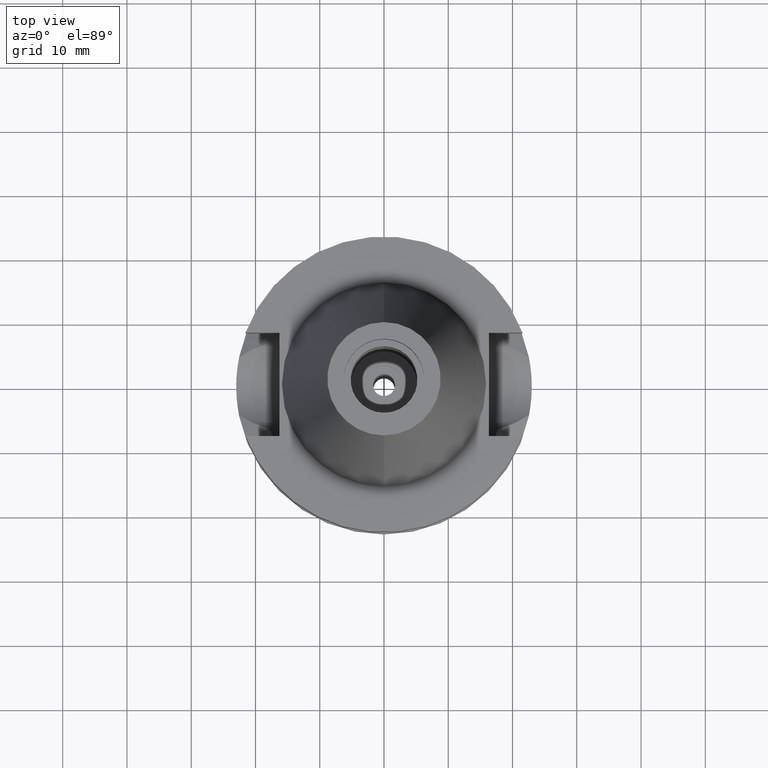
[diagram: clean part render]
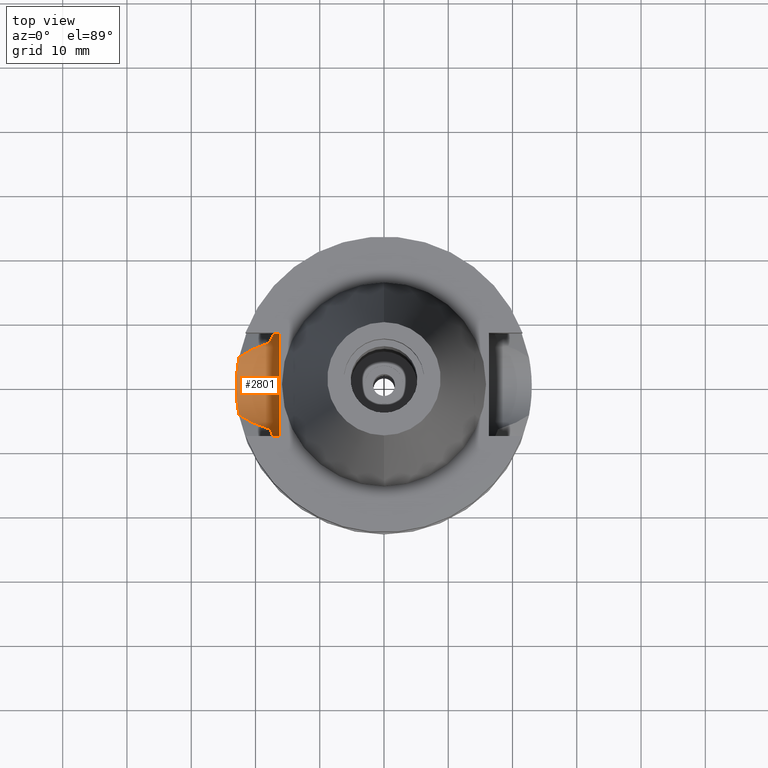
[diagram: same view with one face highlighted and labeled with its STEP entity id]
A machine part, top view. The second image highlights one B-rep face of the part: STEP entity #2801.
In plain terms, the highlighted cylindrical surface (partial cylindrical patch) has radius 8.05 mm, axis along (-1, 0, 0).
Its self-contained STEP definition (entity closure, byte-faithful):
#3 = ORIENTED_EDGE ( 'NONE', *, *, #1139, .T. ) ;
#11 = CYLINDRICAL_SURFACE ( 'NONE', #1826, 8.050000000000000711 ) ;
#18 = CARTESIAN_POINT ( 'NONE',  ( -18.57624872220198853, 6.503173323986779941, -15.71372017776992003 ) ) ;
#20 = CARTESIAN_POINT ( 'NONE',  ( -19.89857123033766584, 5.971878619631888263, -16.34832721881102202 ) ) ;
#28 = DIRECTION ( 'NONE',  ( 0.0000000000000000000, 0.0000000000000000000, -1.000000000000000000 ) ) ;
#46 = CARTESIAN_POINT ( 'NONE',  ( -17.23531135310999929, 7.996501749182001184, -11.87660739352000050 ) ) ;
#61 = CARTESIAN_POINT ( 'NONE',  ( -20.55893880403271368, 5.668033771167638513, -16.66628404551198628 ) ) ;
#66 = CARTESIAN_POINT ( 'NONE',  ( -22.83515831991506317, 2.749359237397393407, -18.51653920086928196 ) ) ;
#70 = CARTESIAN_POINT ( 'NONE',  ( -17.23531622871000124, -7.996491146968002006, -11.87660607765999998 ) ) ;
#92 = VERTEX_POINT ( 'NONE', #2910 ) ;
#118 = CARTESIAN_POINT ( 'NONE',  ( -21.04639564912879734, 5.420967606633268154, -16.90141497568515661 ) ) ;
#140 = CARTESIAN_POINT ( 'NONE',  ( -22.95202015499865666, 1.533614323660443812, -18.86244436172527017 ) ) ;
#166 = CARTESIAN_POINT ( 'NONE',  ( -18.96738966519999892, -8.049994318072998922, -10.95000099924999937 ) ) ;
#170 = CARTESIAN_POINT ( 'NONE',  ( -22.88938518966574520, -2.254104430437781303, -18.67801065640410130 ) ) ;
#209 = CARTESIAN_POINT ( 'NONE',  ( -17.25079791568849430, 7.963113799905539913, -12.16466472332397686 ) ) ;
#236 = CARTESIAN_POINT ( 'NONE',  ( -19.27477000084288505, 6.229367662011818574, -16.04877386440565346 ) ) ;
#239 = CARTESIAN_POINT ( 'NONE',  ( -22.27790437987590266, 4.685437129885973384, -17.49706748129260347 ) ) ;
#245 = CARTESIAN_POINT ( 'NONE',  ( -18.96736186674000280, 8.050001277723000115, -10.94999977542999936 ) ) ;
#254 = DIRECTION ( 'NONE',  ( 0.0000000000000000000, 0.0000000000000000000, -1.000000000000000000 ) ) ;
#283 = DIRECTION ( 'NONE',  ( -1.000000000000000000, 0.0000000000000000000, 0.0000000000000000000 ) ) ;
#296 = CARTESIAN_POINT ( 'NONE',  ( -20.60178801668841331, -5.647149702341094368, -16.68693861988806049 ) ) ;
#300 = B_SPLINE_CURVE_WITH_KNOTS ( 'NONE', 3,
 ( #2827, #734, #723, #1648 ),
 .UNSPECIFIED., .F., .F.,
 ( 4, 4 ),
 ( 0.0000000000000000000, 1.000000000000000000 ),
 .UNSPECIFIED. ) ;
#307 = CARTESIAN_POINT ( 'NONE',  ( -22.87891341430960779, 2.358121708019464524, -18.64689980299749905 ) ) ;
#346 = CARTESIAN_POINT ( 'NONE',  ( -19.50287498333305791, 6.138361269546106058, -16.15822634878232833 ) ) ;
#351 = CARTESIAN_POINT ( 'NONE',  ( -17.47452430607552287, -7.459789436935926332, -13.97646046015654520 ) ) ;
#382 = CARTESIAN_POINT ( 'NONE',  ( -22.92437741125128881, -1.866172412060304930, -18.78133692844377833 ) ) ;
#394 = CARTESIAN_POINT ( 'NONE',  ( -17.72598984667062538, -8.027133614841753584, -11.61218199030514597 ) ) ;
#398 = CARTESIAN_POINT ( 'NONE',  ( -22.81065323835687053, -3.022382754286001116, -18.44420457557493265 ) ) ;
#405 = CARTESIAN_POINT ( 'NONE',  ( -18.96738966519999892, -8.049994318072998922, -10.95000099924999937 ) ) ;
#407 = VERTEX_POINT ( 'NONE', #405 ) ;
#412 = CARTESIAN_POINT ( 'NONE',  ( -20.64409785173076273, 5.626374423242209488, -16.70733471157011252 ) ) ;
#426 = VECTOR ( 'NONE', #748, 1000.000000000000114 ) ;
#429 = CARTESIAN_POINT ( 'NONE',  ( -20.56714500445705696, 5.664042630044271220, -16.67023940852507735 ) ) ;
#457 = CARTESIAN_POINT ( 'NONE',  ( -20.58003457328145203, 5.657760775534448783, -16.67645236852075996 ) ) ;
#474 = CARTESIAN_POINT ( 'NONE',  ( -20.22047913402555253, 5.829432203429742110, -16.50317925048704382 ) ) ;
#494 = CARTESIAN_POINT ( 'NONE',  ( -17.23531135310999929, 7.996501749182001184, -11.87660739352000050 ) ) ;
#503 = EDGE_LOOP ( 'NONE', ( #1282, #3016, #976, #606, #2809, #1585, #1318, #2164, #3, #1548 ) ) ;
#519 = CARTESIAN_POINT ( 'NONE',  ( -22.55786346208000026, 4.488072640470000430, -17.63279163029000074 ) ) ;
#523 = CARTESIAN_POINT ( 'NONE',  ( -18.80553894996279496, -6.435339280190603084, -15.82262917054192641 ) ) ;
#546 = CARTESIAN_POINT ( 'NONE',  ( -17.42161707611933252, -7.582199713747250769, -13.65422730745306623 ) ) ;
#606 = ORIENTED_EDGE ( 'NONE', *, *, #927, .T. ) ;
#625 = CARTESIAN_POINT ( 'NONE',  ( -22.88197413610445352, -2.328135299072308317, -18.65602165958649294 ) ) ;
#702 = CARTESIAN_POINT ( 'NONE',  ( -17.61321462445758357, 7.137149445239026058, -14.73809007965728135 ) ) ;
#716 = VERTEX_POINT ( 'NONE', #46 ) ;
#718 = CARTESIAN_POINT ( 'NONE',  ( -17.33752402834236506, 7.772947272226049087, -13.04947954205947447 ) ) ;
#723 = CARTESIAN_POINT ( 'NONE',  ( -17.72682660682189848, 8.027186146991873272, -11.61172866957230276 ) ) ;
#734 = CARTESIAN_POINT ( 'NONE',  ( -18.30417677803190202, 8.050000009832551484, -11.30245973780451862 ) ) ;
#748 = DIRECTION ( 'NONE',  ( -0.9999999999976610932, 2.130145251746920513E-06, -3.746156564522856503E-07 ) ) ;
#753 = CARTESIAN_POINT ( 'NONE',  ( -22.85088369058747659, 2.617365685144839471, -18.56358241620148775 ) ) ;
#758 = CARTESIAN_POINT ( 'NONE',  ( -21.45936375468500401, -5.194679876426218534, -17.10094082781561298 ) ) ;
#760 = EDGE_CURVE ( 'NONE', #2091, #1796, #2519, .T. ) ;
#770 = CARTESIAN_POINT ( 'NONE',  ( -22.63177853288513575, 4.116562148414592670, -17.88229306132062035 ) ) ;
#773 = CARTESIAN_POINT ( 'NONE',  ( -22.55786346208000026, -4.488072640470000430, -17.63279163029000074 ) ) ;
#779 = CARTESIAN_POINT ( 'NONE',  ( -17.51071098875464926, -7.374879092312460749, -14.18037827738803536 ) ) ;
#835 = VERTEX_POINT ( 'NONE', #70 ) ;
#927 = EDGE_CURVE ( 'NONE', #92, #1724, #945, .T. ) ;
#945 = CIRCLE ( 'NONE', #1891, 8.050000000000000711 ) ;
#966 = DIRECTION ( 'NONE',  ( 1.000000000000000000, 0.0000000000000000000, 0.0000000000000000000 ) ) ;
#968 = B_SPLINE_CURVE_WITH_KNOTS ( 'NONE', 3,
 ( #519, #770, #1449, #1220, #2163, #66, #753, #2637, #1681, #307, #1235, #2176, #140, #1293, #1063, #1790, #2756, #3019, #2496, #382, #2258, #2024, #170, #2963, #625, #398, #1329, #2272 ),
 .UNSPECIFIED., .F., .F.,
 ( 4, 2, 2, 1, 1, 2, 2, 2, 2, 2, 2, 1, 1, 2, 2, 4 ),
 ( 0.0000000000000000000, 0.1250000000000039413, 0.1875000000000059119, 0.2187500000000066613, 0.2343750000000069944, 0.2421875000000071609, 0.2500000000000073275, 0.3750000000000054956, 0.5000000000000036637, 0.6250000000000017764, 0.6875000000000008882, 0.7187500000000004441, 0.7343750000000004441, 0.7421875000000004441, 0.7500000000000004441, 1.000000000000000000 ),
 .UNSPECIFIED. ) ;
#976 = ORIENTED_EDGE ( 'NONE', *, *, #2361, .F. ) ;
#1032 = CARTESIAN_POINT ( 'NONE',  ( -17.32790249028235507, -7.797426465314135413, -13.04841612853738830 ) ) ;
#1036 = CARTESIAN_POINT ( 'NONE',  ( -19.27145901608241019, 6.230667353173573453, -16.04718566850732486 ) ) ;
#1044 = CARTESIAN_POINT ( 'NONE',  ( -17.68526844438783030, -6.947831520201633637, -15.03065165903256428 ) ) ;
#1063 = CARTESIAN_POINT ( 'NONE',  ( -23.00038478320950119, 0.3584610413676726504, -19.00113007008505761 ) ) ;
#1111 = VERTEX_POINT ( 'NONE', #1921 ) ;
#1113 = CARTESIAN_POINT ( 'NONE',  ( -19.32658731103081351, 6.208955161327025074, -16.07363106783727957 ) ) ;
#1139 = EDGE_CURVE ( 'NONE', #1111, #2091, #968, .T. ) ;
#1152 = B_SPLINE_CURVE_WITH_KNOTS ( 'NONE', 3,
 ( #2270, #394, #2961, #166 ),
 .UNSPECIFIED., .F., .F.,
 ( 4, 4 ),
 ( 0.0000000000000000000, 1.000000000000000000 ),
 .UNSPECIFIED. ) ;
#1177 = CARTESIAN_POINT ( 'NONE',  ( -22.27077028202704057, -4.695363211319531160, -17.49357808135257741 ) ) ;
#1198 = CARTESIAN_POINT ( 'NONE',  ( -19.78328776892033147, 6.021651293259151494, -16.29290655536503252 ) ) ;
#1216 = LINE ( 'NONE', #2762, #426 ) ;
#1220 = CARTESIAN_POINT ( 'NONE',  ( -22.77720528803699196, 3.196010378945236319, -18.34110453313107314 ) ) ;
#1235 = CARTESIAN_POINT ( 'NONE',  ( -22.88096829833158097, 2.338147452199169862, -18.65299993512483923 ) ) ;
#1257 = CARTESIAN_POINT ( 'NONE',  ( -21.31889375515417484, 5.274114906254664170, -17.03301015039365396 ) ) ;
#1266 = CARTESIAN_POINT ( 'NONE',  ( -17.42270178794457181, -7.579707364088493549, -13.66120112249793728 ) ) ;
#1278 = CARTESIAN_POINT ( 'NONE',  ( -19.38622727024744208, 6.185272681567900221, -16.10224548289518509 ) ) ;
#1281 = CARTESIAN_POINT ( 'NONE',  ( -17.42909948835617939, -7.564997785236814209, -13.70206085427003018 ) ) ;
#1282 = ORIENTED_EDGE ( 'NONE', *, *, #2401, .T. ) ;
#1293 = CARTESIAN_POINT ( 'NONE',  ( -22.99087512689730417, 0.7510485227484829940, -18.97462926169251318 ) ) ;
#1318 = ORIENTED_EDGE ( 'NONE', *, *, #1655, .T. ) ;
#1319 = EDGE_CURVE ( 'NONE', #1111, #1562, #1418, .T. ) ;
#1329 = CARTESIAN_POINT ( 'NONE',  ( -22.70333676012394619, -3.756897577674454869, -18.12383893151783099 ) ) ;
#1354 = CARTESIAN_POINT ( 'NONE',  ( -17.75736593456000278, 6.758398853743999624, -15.32339055352999857 ) ) ;
#1357 = CARTESIAN_POINT ( 'NONE',  ( -21.66393474030303778, 5.073665578413932842, -17.19984901370881047 ) ) ;
#1384 = CARTESIAN_POINT ( 'NONE',  ( -16.29999999999999716, 8.050000000000000711, -10.94999999999999929 ) ) ;
#1418 = B_SPLINE_CURVE_WITH_KNOTS ( 'NONE', 3,
 ( #2571, #2341, #239, #2071, #1610, #2553, #1630, #1805, #1357, #2300, #1257, #118, #2249, #2254, #412, #1578, #457, #429, #61, #2106, #474, #20, #1198, #2561, #346, #1278, #1113, #2758, #2166, #236, #1036, #18, #2409, #2427 ),
 .UNSPECIFIED., .F., .F.,
 ( 4, 2, 1, 1, 2, 2, 2, 1, 1, 1, 1, 2, 2, 2, 2, 1, 1, 1, 1, 2, 2, 4 ),
 ( 0.0000000000000000000, 0.1249999999999938383, 0.1874999999999904798, 0.2187499999999875655, 0.2343749999999847622, 0.2499999999999819589, 0.3749999999999584777, 0.4374999999999467648, 0.4687499999999409916, 0.4843749999999381051, 0.4921874999999356071, 0.4960937499999342193, 0.4999999999999328870, 0.6249999999999131806, 0.6874999999999031886, 0.7187499999998981925, 0.7343749999998956390, 0.7421874999998948619, 0.7460937499998951949, 0.7480468749998953060, 0.7499999999998954170, 1.000000000000000000 ),
 .UNSPECIFIED. ) ;
#1438 = CARTESIAN_POINT ( 'NONE',  ( -19.73784485515391296, -6.066847889812133410, -16.27052316889783512 ) ) ;
#1449 = CARTESIAN_POINT ( 'NONE',  ( -22.69585337322503094, 3.743386334315921271, -18.08801043709256362 ) ) ;
#1487 = CARTESIAN_POINT ( 'NONE',  ( -20.71958841299730381, -5.589003259959053338, -16.74373712526119462 ) ) ;
#1523 = EDGE_CURVE ( 'NONE', #835, #407, #1152, .T. ) ;
#1524 = CARTESIAN_POINT ( 'NONE',  ( -17.45717623285886688, -7.500195103410642439, -13.87548234625965371 ) ) ;
#1548 = ORIENTED_EDGE ( 'NONE', *, *, #760, .T. ) ;
#1562 = VERTEX_POINT ( 'NONE', #1354 ) ;
#1578 = CARTESIAN_POINT ( 'NONE',  ( -20.59933170863250851, 5.648340130171034090, -16.68575415139210705 ) ) ;
#1585 = ORIENTED_EDGE ( 'NONE', *, *, #2873, .T. ) ;
#1595 = CARTESIAN_POINT ( 'NONE',  ( -17.40049020041024264, 7.630605231883743400, -13.51497153026903675 ) ) ;
#1610 = CARTESIAN_POINT ( 'NONE',  ( -21.93230817305593305, 4.910039656900369920, -17.32969877489704302 ) ) ;
#1619 = DIRECTION ( 'NONE',  ( 0.9999999999998816502, -4.790213571376908798E-07, -8.419267224440837204E-08 ) ) ;
#1630 = CARTESIAN_POINT ( 'NONE',  ( -21.72805381603099661, 5.035211537029088191, -17.23086493227715010 ) ) ;
#1648 = CARTESIAN_POINT ( 'NONE',  ( -17.23531135310999929, 7.996501749182001184, -11.87660739352000050 ) ) ;
#1655 = EDGE_CURVE ( 'NONE', #716, #1562, #2803, .T. ) ;
#1681 = CARTESIAN_POINT ( 'NONE',  ( -22.87444039209057323, 2.401039230674690383, -18.63361992682984791 ) ) ;
#1706 = CARTESIAN_POINT ( 'NONE',  ( -17.42525155225766653, -7.573846517323565841, -13.67753078513828413 ) ) ;
#1712 = EDGE_CURVE ( 'NONE', #1869, #1724, #2320, .T. ) ;
#1724 = VERTEX_POINT ( 'NONE', #1384 ) ;
#1790 = CARTESIAN_POINT ( 'NONE',  ( -22.99958890699078395, -0.4075372892378172907, -18.99879513228450634 ) ) ;
#1796 = VERTEX_POINT ( 'NONE', #1908 ) ;
#1805 = CARTESIAN_POINT ( 'NONE',  ( -21.68640752660378013, 5.060246031235015707, -17.21071895525150808 ) ) ;
#1826 = AXIS2_PLACEMENT_3D ( 'NONE', #2124, #283, #28 ) ;
#1834 = CARTESIAN_POINT ( 'NONE',  ( -17.36639598952697128, 7.708013521705737503, -13.27272113269864207 ) ) ;
#1837 = FACE_OUTER_BOUND ( 'NONE', #503, .T. ) ;
#1845 = CARTESIAN_POINT ( 'NONE',  ( -17.41027437534934208, 7.608221862865532259, -13.58023614988630889 ) ) ;
#1869 = VERTEX_POINT ( 'NONE', #1892 ) ;
#1871 = CARTESIAN_POINT ( 'NONE',  ( -17.75736593456000278, 6.758398853743999624, -15.32339055352999857 ) ) ;
#1888 = CARTESIAN_POINT ( 'NONE',  ( -16.29999999999999716, 1.981478521019999946E-14, -10.94999999999999929 ) ) ;
#1891 = AXIS2_PLACEMENT_3D ( 'NONE', #1888, #966, #254 ) ;
#1892 = CARTESIAN_POINT ( 'NONE',  ( -18.96736186674000280, 8.050001277723000115, -10.94999977542999936 ) ) ;
#1908 = CARTESIAN_POINT ( 'NONE',  ( -17.75736593456000278, -6.758398853743999624, -15.32339055352999857 ) ) ;
#1921 = CARTESIAN_POINT ( 'NONE',  ( -22.55786346208000026, 4.488072640470000430, -17.63279163029000074 ) ) ;
#1927 = CARTESIAN_POINT ( 'NONE',  ( -20.64901794893526343, -5.623923448681692250, -16.70970915345405317 ) ) ;
#1955 = CARTESIAN_POINT ( 'NONE',  ( -17.75736593456000278, -6.758398853743999624, -15.32339055352999857 ) ) ;
#1968 = CARTESIAN_POINT ( 'NONE',  ( -17.23531622871000124, -7.996491146968002006, -11.87660607765999998 ) ) ;
#1986 = CARTESIAN_POINT ( 'NONE',  ( -17.62112048086010674, -7.108394484292754001, -14.74090103654860684 ) ) ;
#2024 = CARTESIAN_POINT ( 'NONE',  ( -22.89648616696374361, -2.181528174702925149, -18.69905613637076058 ) ) ;
#2071 = CARTESIAN_POINT ( 'NONE',  ( -22.04955340332936586, 4.835045979542746508, -17.38646694628049261 ) ) ;
#2082 = CARTESIAN_POINT ( 'NONE',  ( -17.32019350302492811, 7.811471140980414951, -12.90100481562668833 ) ) ;
#2091 = VERTEX_POINT ( 'NONE', #2450 ) ;
#2106 = CARTESIAN_POINT ( 'NONE',  ( -20.40315942754918765, 5.743696485512975514, -16.59120066005510452 ) ) ;
#2122 = CARTESIAN_POINT ( 'NONE',  ( -17.27395427348953305, 7.913387439660866107, -12.45758214956611809 ) ) ;
#2124 = CARTESIAN_POINT ( 'NONE',  ( -16.29999999999999716, 1.981478521019999946E-14, -10.94999999999999929 ) ) ;
#2153 = CARTESIAN_POINT ( 'NONE',  ( -17.75736593456000278, -6.758398853743999624, -15.32339055352999857 ) ) ;
#2163 = CARTESIAN_POINT ( 'NONE',  ( -22.80186253535800844, 3.015566770923292950, -18.41624563139456683 ) ) ;
#2164 = ORIENTED_EDGE ( 'NONE', *, *, #1319, .F. ) ;
#2166 = CARTESIAN_POINT ( 'NONE',  ( -19.28344670442129782, 6.225959181575003498, -16.05293592157039129 ) ) ;
#2176 = CARTESIAN_POINT ( 'NONE',  ( -22.92267821564242425, 1.925741905444088520, -18.77676461609982894 ) ) ;
#2249 = CARTESIAN_POINT ( 'NONE',  ( -20.90540333334299916, 5.495122715833899996, -16.83335727669377491 ) ) ;
#2254 = CARTESIAN_POINT ( 'NONE',  ( -20.73258828365005968, 5.582512920693047498, -16.75000143250549911 ) ) ;
#2258 = CARTESIAN_POINT ( 'NONE',  ( -22.91224880993801349, -2.011918557755140835, -18.74566052838177654 ) ) ;
#2270 = CARTESIAN_POINT ( 'NONE',  ( -17.23531622871000124, -7.996491146968002006, -11.87660607765999998 ) ) ;
#2272 = CARTESIAN_POINT ( 'NONE',  ( -22.55786346208000026, -4.488072640470000430, -17.63279163029000074 ) ) ;
#2300 = CARTESIAN_POINT ( 'NONE',  ( -21.48790821065408707, 5.178165579350508807, -17.11471330250028089 ) ) ;
#2310 = CARTESIAN_POINT ( 'NONE',  ( -17.41900920147912046, 7.588190011607190755, -13.63736803057055269 ) ) ;
#2320 = LINE ( 'NONE', #245, #2740 ) ;
#2341 = CARTESIAN_POINT ( 'NONE',  ( -22.42195112696040127, 4.586205746689362428, -17.56688676096097268 ) ) ;
#2361 = EDGE_CURVE ( 'NONE', #92, #407, #1216, .T. ) ;
#2363 = CARTESIAN_POINT ( 'NONE',  ( -21.96025870767167021, -4.898433549968967959, -17.34319459268097319 ) ) ;
#2401 = EDGE_CURVE ( 'NONE', #1796, #835, #2619, .T. ) ;
#2409 = CARTESIAN_POINT ( 'NONE',  ( -18.07214257287909120, 6.661380894831059329, -15.47331680737953619 ) ) ;
#2427 = CARTESIAN_POINT ( 'NONE',  ( -17.75736593456000278, 6.758398853743999624, -15.32339055352999857 ) ) ;
#2450 = CARTESIAN_POINT ( 'NONE',  ( -22.55786346208000026, -4.488072640470000430, -17.63279163029000074 ) ) ;
#2458 = CARTESIAN_POINT ( 'NONE',  ( -17.43824103332121922, -7.543945450558302568, -13.75954458646490508 ) ) ;
#2496 = CARTESIAN_POINT ( 'NONE',  ( -22.94679163318213710, -1.574420156288401929, -18.84705333683657358 ) ) ;
#2519 = B_SPLINE_CURVE_WITH_KNOTS ( 'NONE', 3,
 ( #773, #1177, #2363, #758, #2595, #2625, #1487, #1927, #296, #2605, #1438, #523, #2153 ),
 .UNSPECIFIED., .F., .F.,
 ( 4, 2, 1, 1, 1, 2, 2, 4 ),
 ( 0.0000000000000000000, 0.2500000000000053846, 0.3750000000000081046, 0.4375000000000099365, 0.4687500000000099365, 0.4843750000000091593, 0.5000000000000083267, 1.000000000000000000 ),
 .UNSPECIFIED. ) ;
#2551 = CARTESIAN_POINT ( 'NONE',  ( -17.41739040231916036, 7.591905848853864214, -13.62685697185460398 ) ) ;
#2553 = CARTESIAN_POINT ( 'NONE',  ( -21.79013828748221115, 4.997657247753530818, -17.26090040983093132 ) ) ;
#2561 = CARTESIAN_POINT ( 'NONE',  ( -19.59834816408556435, 6.099009162863424649, -16.20407058086506069 ) ) ;
#2571 = CARTESIAN_POINT ( 'NONE',  ( -22.55786346208000026, 4.488072640470000430, -17.63279163029000074 ) ) ;
#2593 = CARTESIAN_POINT ( 'NONE',  ( -17.38155101342138309, 7.673760027832490671, -13.38447361011241732 ) ) ;
#2595 = CARTESIAN_POINT ( 'NONE',  ( -21.20013438032825803, -5.340711731191421840, -16.97564795249467906 ) ) ;
#2605 = CARTESIAN_POINT ( 'NONE',  ( -20.57979736247644453, -5.657902515559345424, -16.67633774060308838 ) ) ;
#2619 = B_SPLINE_CURVE_WITH_KNOTS ( 'NONE', 3,
 ( #1955, #1044, #1986, #2904, #779, #351, #1524, #2458, #1281, #1706, #1266, #546, #1032, #2658, #1968 ),
 .UNSPECIFIED., .F., .F.,
 ( 4, 2, 2, 1, 1, 1, 2, 2, 4 ),
 ( 0.0000000000000000000, 0.2500000000000097145, 0.3750000000000143219, 0.4375000000000164313, 0.4687500000000167089, 0.4843750000000163758, 0.4921875000000159872, 0.5000000000000155431, 1.000000000000000000 ),
 .UNSPECIFIED. ) ;
#2625 = CARTESIAN_POINT ( 'NONE',  ( -20.88233178898444820, -5.506964466841188788, -16.82223945191149994 ) ) ;
#2637 = CARTESIAN_POINT ( 'NONE',  ( -22.86761554356125004, 2.465586697941793304, -18.61335189095648701 ) ) ;
#2658 = CARTESIAN_POINT ( 'NONE',  ( -17.26628279543226085, -7.929748447890334617, -12.45260344247130746 ) ) ;
#2740 = VECTOR ( 'NONE', #1619, 1000.000000000000114 ) ;
#2756 = CARTESIAN_POINT ( 'NONE',  ( -22.98936173850417575, -0.7957544118385544429, -18.97023172982084205 ) ) ;
#2758 = CARTESIAN_POINT ( 'NONE',  ( -19.29643825175497795, 6.220850138948687658, -16.05916786477975222 ) ) ;
#2762 = CARTESIAN_POINT ( 'NONE',  ( -16.29999999999999716, -8.050000000000000711, -10.94999999999999929 ) ) ;
#2783 = CARTESIAN_POINT ( 'NONE',  ( -17.41453500348996641, 7.598455448392233080, -13.60820850657477976 ) ) ;
#2801 = ADVANCED_FACE ( 'NONE', ( #1837 ), #11, .F. ) ;
#2803 = B_SPLINE_CURVE_WITH_KNOTS ( 'NONE', 3,
 ( #494, #209, #2122, #2082, #718, #1834, #2593, #1595, #1845, #2783, #2551, #2310, #3014, #702, #1871 ),
 .UNSPECIFIED., .F., .F.,
 ( 4, 2, 2, 1, 1, 1, 2, 2, 4 ),
 ( 0.0000000000000000000, 0.2500000000000006661, 0.3750000000000011102, 0.4375000000000021649, 0.4687500000000020539, 0.4843750000000018874, 0.4921875000000011102, 0.5000000000000002220, 1.000000000000000000 ),
 .UNSPECIFIED. ) ;
#2809 = ORIENTED_EDGE ( 'NONE', *, *, #1712, .F. ) ;
#2827 = CARTESIAN_POINT ( 'NONE',  ( -18.96736186674000280, 8.050001277723000115, -10.94999977542999936 ) ) ;
#2873 = EDGE_CURVE ( 'NONE', #1869, #716, #300, .T. ) ;
#2904 = CARTESIAN_POINT ( 'NONE',  ( -17.53682282553517524, -7.312806369637254278, -14.31894474628180447 ) ) ;
#2910 = CARTESIAN_POINT ( 'NONE',  ( -16.29999999999999716, -8.050000000000000711, -10.94999999999999929 ) ) ;
#2961 = CARTESIAN_POINT ( 'NONE',  ( -18.30334765883396031, -8.049999956192328554, -11.30291652902797850 ) ) ;
#2963 = CARTESIAN_POINT ( 'NONE',  ( -22.88457441393809333, -2.302460907685310421, -18.66374158611730749 ) ) ;
#3014 = CARTESIAN_POINT ( 'NONE',  ( -17.50084873668810204, 7.400223479641930169, -14.16631597704346568 ) ) ;
#3016 = ORIENTED_EDGE ( 'NONE', *, *, #1523, .T. ) ;
#3019 = CARTESIAN_POINT ( 'NONE',  ( -22.95927714020837840, -1.379574273679534668, -18.88334641525239022 ) ) ;